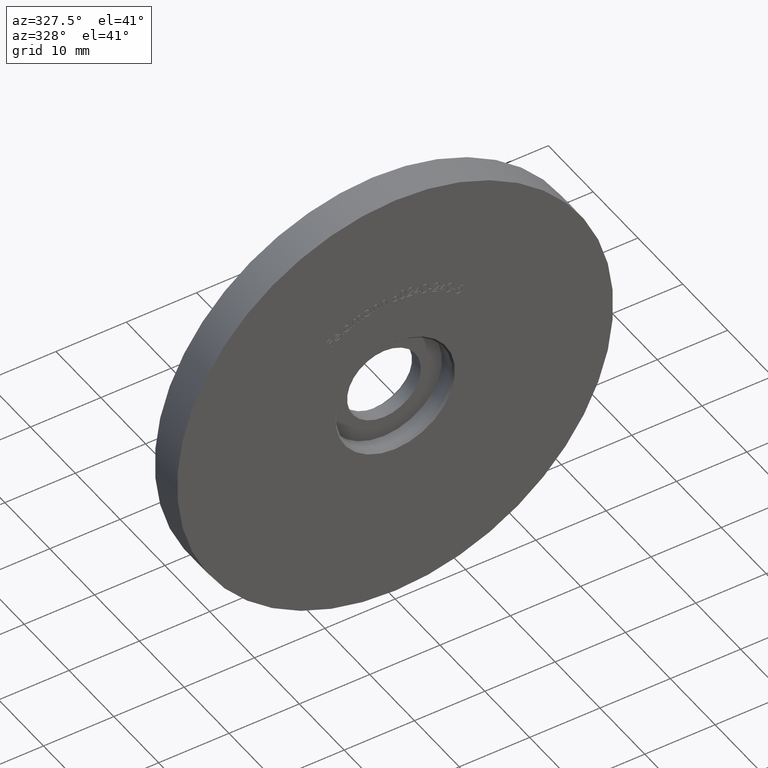
[diagram: clean part render]
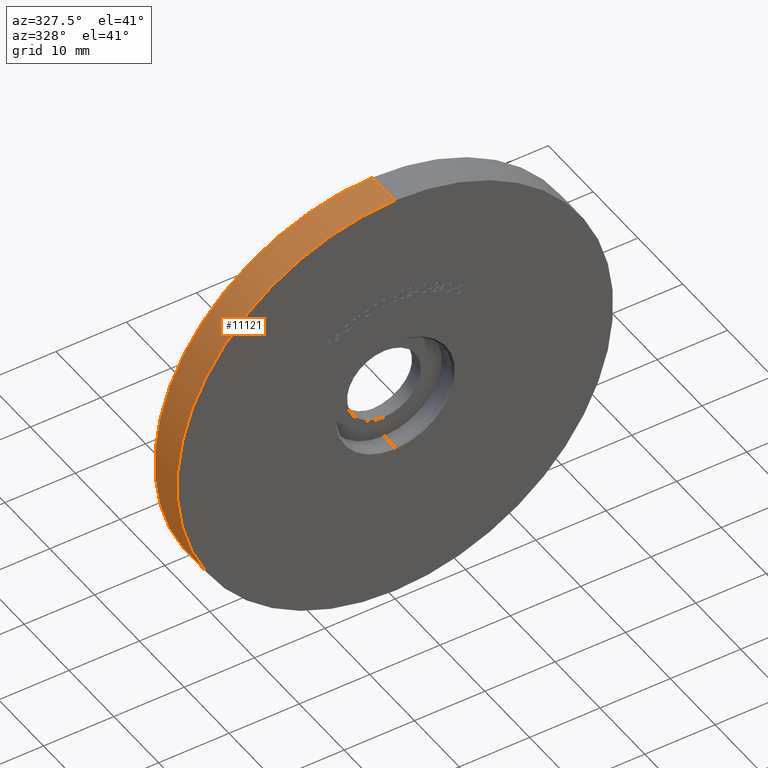
[diagram: same view with one face highlighted and labeled with its STEP entity id]
A machine part, auxiliary view. The second image highlights one B-rep face of the part: STEP entity #11121.
In plain terms, the highlighted cylindrical surface (partial cylindrical patch) has radius 31 mm, axis along (-0, 1, -0).
Its self-contained STEP definition (entity closure, byte-faithful):
#165 = CARTESIAN_POINT ( 'NONE',  ( 3.796405077356795115E-15, -2.602085213965210642E-15, -31.00000000000000000 ) ) ;
#185 = EDGE_CURVE ( 'NONE', #9240, #1005, #7391, .T. ) ;
#770 = DIRECTION ( 'NONE',  ( -0.000000000000000000, 1.000000000000000000, -0.000000000000000000 ) ) ;
#1005 = VERTEX_POINT ( 'NONE', #12803 ) ;
#1210 = CARTESIAN_POINT ( 'NONE',  ( 3.796405077356794326E-15, 4.999999999999997335, -30.99999999999999645 ) ) ;
#2545 = ORIENTED_EDGE ( 'NONE', *, *, #10909, .F. ) ;
#2672 = DIRECTION ( 'NONE',  ( -0.000000000000000000, 1.000000000000000000, -0.000000000000000000 ) ) ;
#3085 = ORIENTED_EDGE ( 'NONE', *, *, #10747, .F. ) ;
#3396 = CARTESIAN_POINT ( 'NONE',  ( 0.000000000000000000, 4.999999999999997335, 31.00000000000000000 ) ) ;
#5050 = CARTESIAN_POINT ( 'NONE',  ( 3.796405077356795115E-15, 4.999999999999997335, -31.00000000000000000 ) ) ;
#5259 = AXIS2_PLACEMENT_3D ( 'NONE', #7292, #8355, #9292 ) ;
#5456 = CARTESIAN_POINT ( 'NONE',  ( 0.000000000000000000, 4.999999999999997335, 0.000000000000000000 ) ) ;
#6233 = VECTOR ( 'NONE', #770, 1000.000000000000000 ) ;
#7292 = CARTESIAN_POINT ( 'NONE',  ( 0.000000000000000000, -2.602085213965210642E-15, 0.000000000000000000 ) ) ;
#7391 = CIRCLE ( 'NONE', #5259, 31.00000000000000000 ) ;
#7451 = VECTOR ( 'NONE', #8811, 1000.000000000000000 ) ;
#7545 = VERTEX_POINT ( 'NONE', #1210 ) ;
#7889 = EDGE_LOOP ( 'NONE', ( #3085, #10242, #13580, #2545 ) ) ;
#7994 = CARTESIAN_POINT ( 'NONE',  ( 0.000000000000000000, 4.999999999999997335, 30.99999999999999645 ) ) ;
#8050 = DIRECTION ( 'NONE',  ( 0.000000000000000000, 0.000000000000000000, 1.000000000000000000 ) ) ;
#8355 = DIRECTION ( 'NONE',  ( -0.000000000000000000, 1.000000000000000000, -0.000000000000000000 ) ) ;
#8470 = EDGE_CURVE ( 'NONE', #1005, #12075, #11509, .T. ) ;
#8650 = AXIS2_PLACEMENT_3D ( 'NONE', #5456, #11908, #13163 ) ;
#8811 = DIRECTION ( 'NONE',  ( -0.000000000000000000, 1.000000000000000000, -0.000000000000000000 ) ) ;
#9240 = VERTEX_POINT ( 'NONE', #165 ) ;
#9271 = CARTESIAN_POINT ( 'NONE',  ( 0.000000000000000000, 4.999999999999997335, 0.000000000000000000 ) ) ;
#9292 = DIRECTION ( 'NONE',  ( 0.000000000000000000, 0.000000000000000000, 1.000000000000000000 ) ) ;
#9453 = LINE ( 'NONE', #5050, #6233 ) ;
#9614 = CIRCLE ( 'NONE', #8650, 30.99999999999999645 ) ;
#10242 = ORIENTED_EDGE ( 'NONE', *, *, #185, .T. ) ;
#10747 = EDGE_CURVE ( 'NONE', #9240, #7545, #9453, .T. ) ;
#10909 = EDGE_CURVE ( 'NONE', #7545, #12075, #9614, .T. ) ;
#10953 = CYLINDRICAL_SURFACE ( 'NONE', #12722, 31.00000000000000000 ) ;
#11121 = ADVANCED_FACE ( 'NONE', ( #13874 ), #10953, .T. ) ;
#11509 = LINE ( 'NONE', #3396, #7451 ) ;
#11908 = DIRECTION ( 'NONE',  ( -0.000000000000000000, 1.000000000000000000, -0.000000000000000000 ) ) ;
#12075 = VERTEX_POINT ( 'NONE', #7994 ) ;
#12722 = AXIS2_PLACEMENT_3D ( 'NONE', #9271, #2672, #8050 ) ;
#12803 = CARTESIAN_POINT ( 'NONE',  ( 0.000000000000000000, -2.602085213965210642E-15, 31.00000000000000000 ) ) ;
#13163 = DIRECTION ( 'NONE',  ( 0.000000000000000000, 0.000000000000000000, 1.000000000000000000 ) ) ;
#13580 = ORIENTED_EDGE ( 'NONE', *, *, #8470, .T. ) ;
#13874 = FACE_OUTER_BOUND ( 'NONE', #7889, .T. ) ;